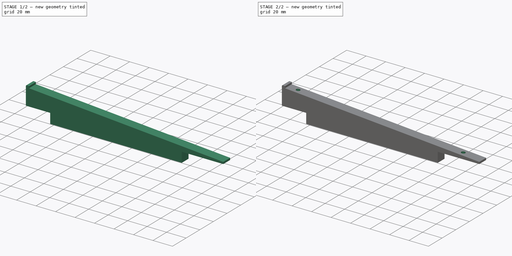
[diagram: build sequence overview — one tinted view per stage of 2, left to right]
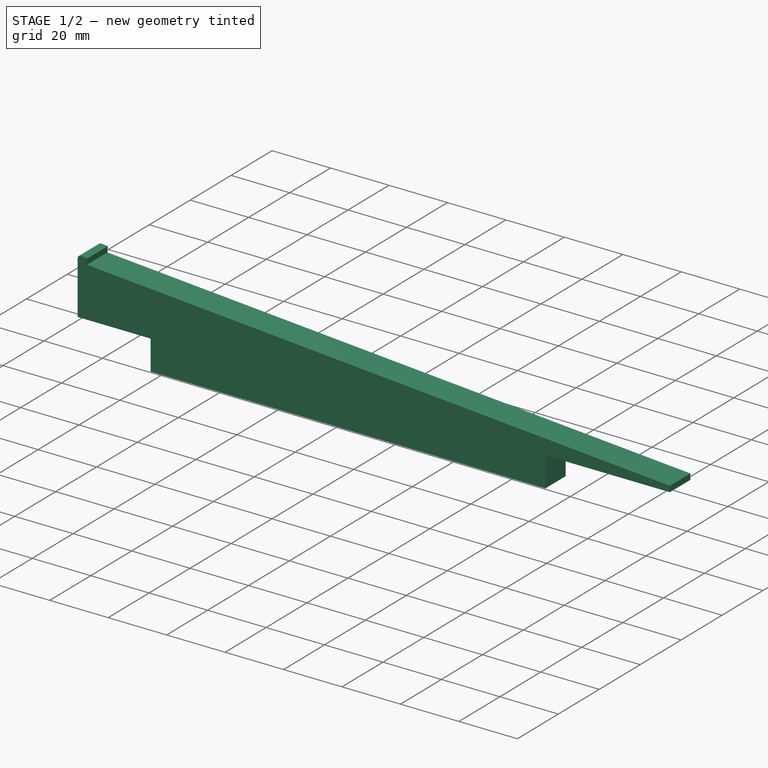
[diagram: stage 1 of 2 — iso view after this stage's code; geometry added in this stage tinted green]
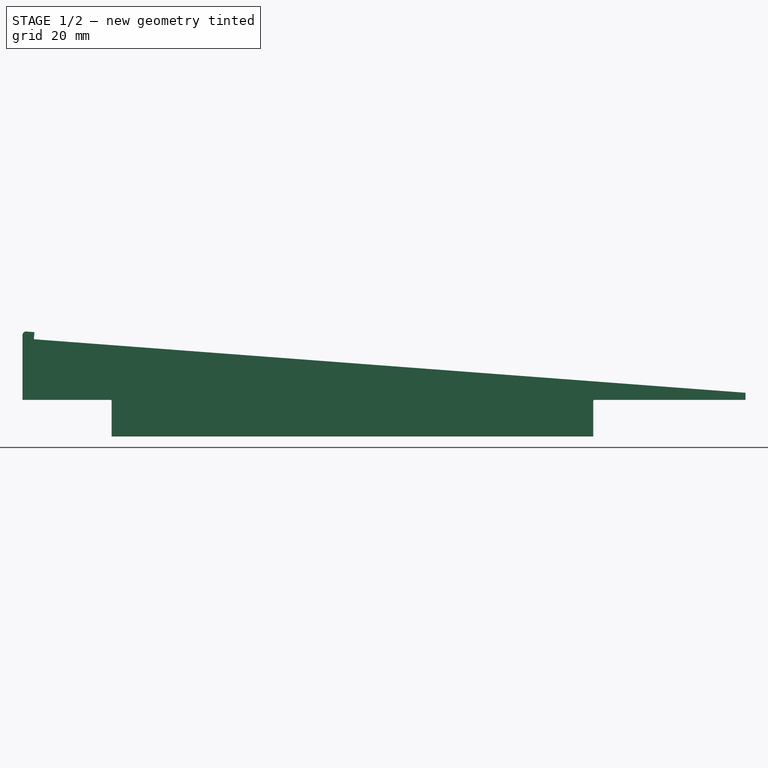
[diagram: stage 1 of 2 — front view after this stage's code; geometry added in this stage tinted green]
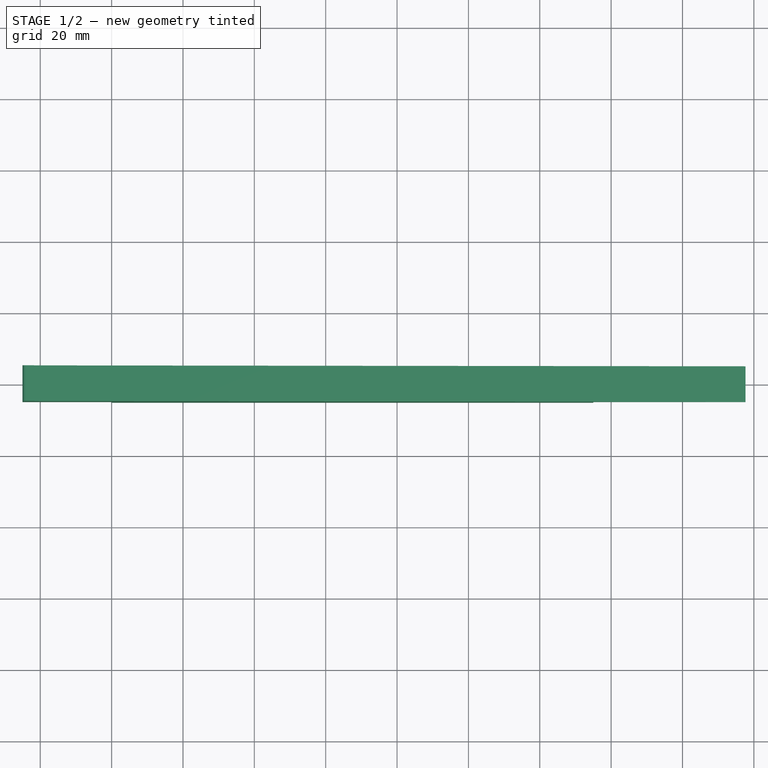
[diagram: stage 1 of 2 — top view after this stage's code; geometry added in this stage tinted green]
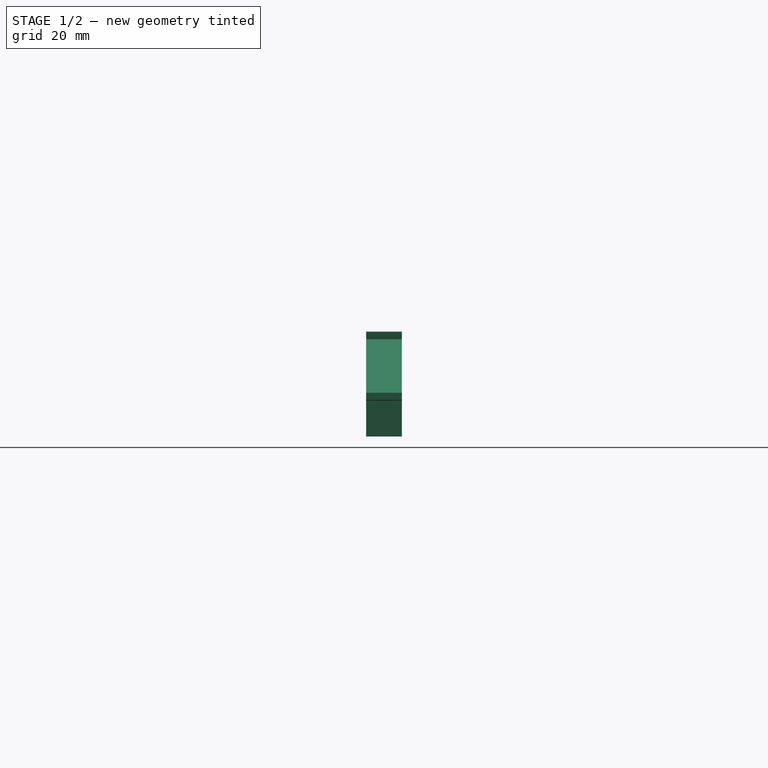
[diagram: stage 1 of 2 — right view after this stage's code; geometry added in this stage tinted green]
FCSTD DOCUMENT  (FreeCAD 0.19RUnknown)
Label: beam_brain_foot
License: All rights reserved
LicenseURL: http://en.wikipedia.org/wiki/All_rights_reserved
objects: Sketcher::SketchObject×2, PartDesign::Pad×1, PartDesign::Fillet×1, PartDesign::Pocket×1, PartDesign::Body×1
note: 9 computed .brp shape members not serialized (recipe doc carries the construction recipe); baked Part::Feature solids carry a one-line shape summary decoded from their .brp

FEATURE [Sketcher::SketchObject] Sketch
  MapMode = 5
  Placement = pos=(0,0,0) rot=(1,0,0;1.5708rad)
  Support = -> [XZ_Plane]
  sketch-geometry (13):
    g0: LineSegment StartX=-24.97 StartY=0 StartZ=0 EndX=-0.25 EndY=0 EndZ=0
    g1: LineSegment StartX=0 StartY=-0.25 StartZ=0 EndX=0 EndY=-10.25 EndZ=0
    g2: LineSegment StartX=0 StartY=-10.25 StartZ=0 EndX=135 EndY=-10.25 EndZ=0
    g3: LineSegment StartX=135 StartY=-10.25 StartZ=0 EndX=135 EndY=-0.250004 EndZ=0
    g4: LineSegment StartX=135.25 StartY=0 StartZ=0 EndX=177.65 EndY=0 EndZ=0
    g5: LineSegment StartX=177.65 StartY=0 StartZ=0 EndX=177.65 EndY=2 EndZ=0
    g6: LineSegment StartX=177.65 StartY=2 StartZ=0 EndX=-21.7867 EndY=17 EndZ=0
    g7: LineSegment StartX=-21.7867 StartY=17 StartZ=0 EndX=-21.6367 EndY=18.9944 EndZ=0
    g8: LineSegment StartX=-21.6367 StartY=18.9944 StartZ=0 EndX=-24.97 EndY=19.2451 EndZ=0
    g9: LineSegment StartX=-24.97 StartY=19.2451 StartZ=0 EndX=-24.97 EndY=0 EndZ=0
    g10: ArcOfCircle CenterX=-0.25 CenterY=-0.25 CenterZ=0 NormalX=0 NormalY=0 NormalZ=1 AngleXU=0 Radius=0.25 StartAngle=7.08003e-09 EndAngle=1.5708
    g11: ArcOfCircle CenterX=135.25 CenterY=-0.25 CenterZ=0 NormalX=0 NormalY=0 NormalZ=1 AngleXU=0 Radius=0.25 StartAngle=1.5708 EndAngle=3.14161
    g12: LineSegment [constr] StartX=-21.7867 StartY=17 StartZ=0 EndX=-21.7867 EndY=0 EndZ=0
  constraints (41):
    c: Vertical(g1)
    c: Coincident(g1,g2)
    c: Horizontal(g2)
    c: Coincident(g2,g3)
    c: Vertical(g3)
    c: Horizontal(g4)
    c: Coincident(g4,g5)
    c: Vertical(g5)
    c: Coincident(g5,g6)
    c: Coincident(g6,g7)
    c: Coincident(g7,g8)
    c: Vertical(g9)
    c: PointOnObject(g0,g-1)
    c: PointOnObject(g0,g-1)
    c: Coincident(g0,g9)
    c: Coincident(g10,g0)
    c: Coincident(g10,g1)
    c: Coincident(g3,g11)
    c: Coincident(g4,g11)
    c: PointOnObject(g4,g-1)
    c: Radius(g11) = 0.25
    c: Radius(g10) = 0.25
    c: DistanceX(g2,g2) = 135
    c: DistanceX(g4,g4) = 42.4
    c: Angle(g7,g8) = 4.71239
    c: Parallel(g8,g6)
    c: Distance(g7) = 2
    c: DistanceX(g0,g0) = 24.72
    c: Distance(g6) = 200
    c: Coincident(g8,g9)
    c: PointOnObject(g1,g-2)
    c: DistanceY(g5,g5) = 2
    c: DistanceY(g3,g3) = 10
    c: Vertical(g12)
    c: PointOnObject(g12,g0)
    c: Coincident(g12,g6)
    c: DistanceY(g12,g12) = 17
    c: Tangent(g10,g1)
    c: Tangent(g10,g0)
    c: Tangent(g11,g4)
    c: Tangent(g11,g3)
FEATURE [PartDesign::Pad] Pad
  Direction = (1,1,1)
  Length = 5
  Length2 = 5
  Placement = pos=(0,0,0) rot=(1,0,0;1.5708rad)
  Profile = -> Sketch
  Type = 4
FEATURE [PartDesign::Fillet] Fillet
  Base = -> Pad [Edge14]
  BaseFeature = -> Pad
  Placement = pos=(0,0,0) rot=(1,0,0;1.5708rad)
  Radius = 1
  SupportTransform = false
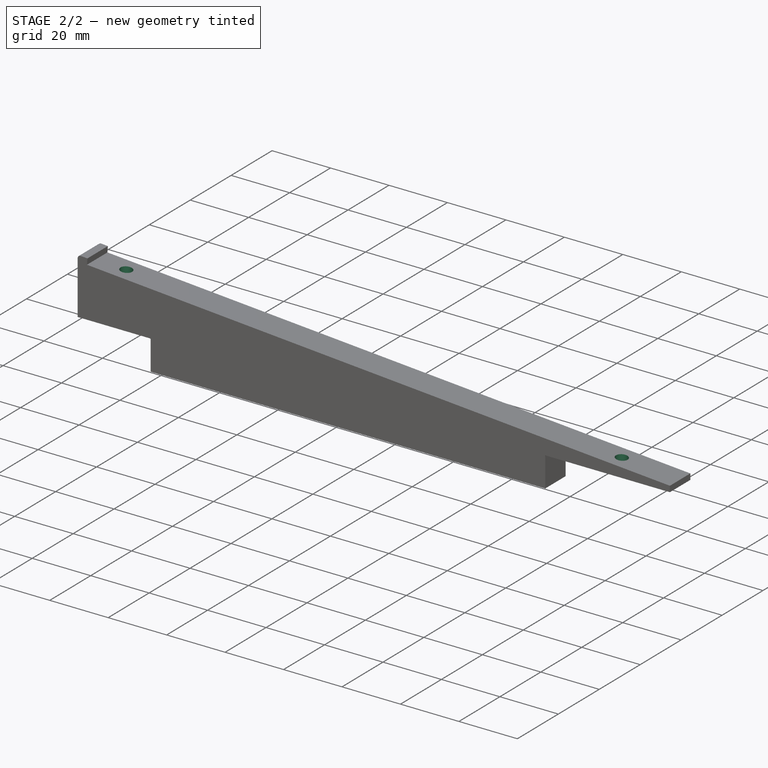
[diagram: stage 2 of 2 — iso view after this stage's code; geometry added in this stage tinted green]
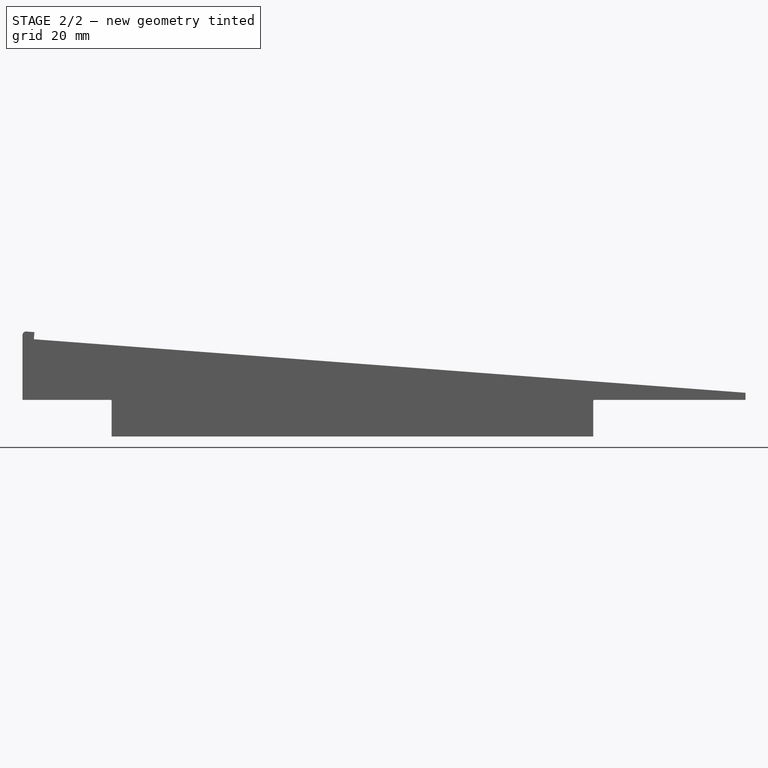
[diagram: stage 2 of 2 — front view after this stage's code; geometry added in this stage tinted green]
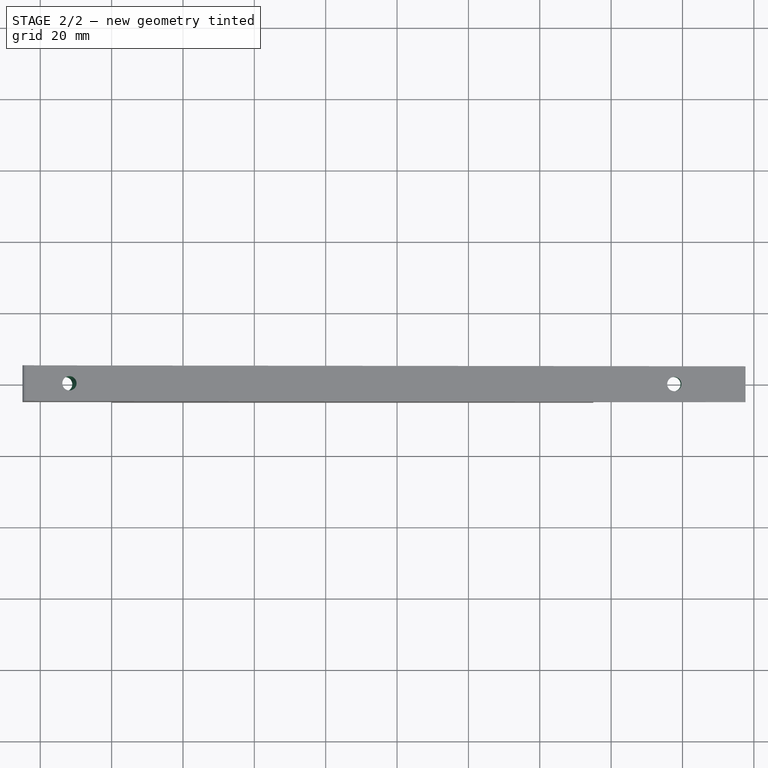
[diagram: stage 2 of 2 — top view after this stage's code; geometry added in this stage tinted green]
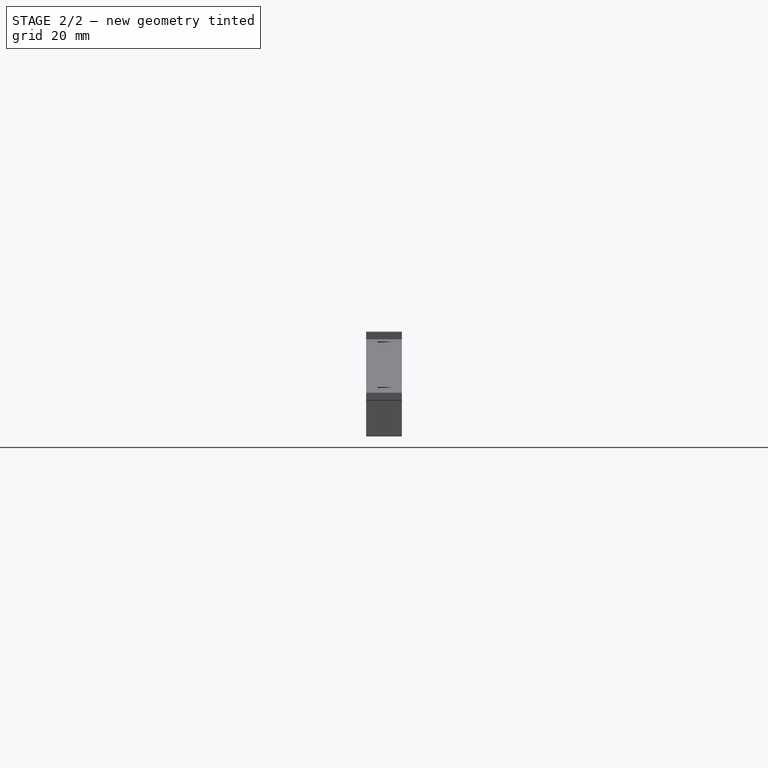
[diagram: stage 2 of 2 — right view after this stage's code; geometry added in this stage tinted green]
FEATURE [Sketcher::SketchObject] Sketch001
  ExternalGeometry = -> [Fillet]
  MapMode = 5
  Placement = pos=(1.14886,-3.4e-15,15.275) rot=(0.037526,0,0.999296;3.14159rad)
  Support = -> [Fillet]
  sketch-geometry (4):
    g0: Circle CenterX=13.0003 CenterY=0 CenterZ=0 NormalX=0 NormalY=0 NormalZ=1 AngleXU=0 Radius=2
    g1: LineSegment [constr] StartX=23.0003 StartY=0 StartZ=0 EndX=13.0003 EndY=0 EndZ=0
    g2: LineSegment [constr] StartX=-177 StartY=0 StartZ=0 EndX=-157 EndY=0 EndZ=0
    g3: Circle CenterX=-157 CenterY=0 CenterZ=0 NormalX=0 NormalY=0 NormalZ=1 AngleXU=0 Radius=2
  constraints (12):
    c: PointOnObject(g1,g-3)
    c: PointOnObject(g1,g-1)
    c: Horizontal(g1)
    c: DistanceX(g1,g1) = 10
    c: Coincident(g0,g1)
    c: Diameter(g0) = 4
    c: Horizontal(g2)
    c: PointOnObject(g2,g-4)
    c: PointOnObject(g2,g-1)
    c: DistanceX(g2,g2) = 20
    c: Coincident(g3,g2)
    c: Diameter(g3) = 4
FEATURE [PartDesign::Pocket] Pocket
  BaseFeature = -> Fillet
  Length = 5
  Length2 = 100
  Placement = pos=(0,0,0) rot=(1,0,0;1.5708rad)
  Profile = -> Sketch001
  Type = 1
FEATURE [PartDesign::Body] Body
  Group = -> [Sketch,Pad,Fillet,Sketch001,Pocket]
  Origin = -> Origin
  Tip = -> Pocket
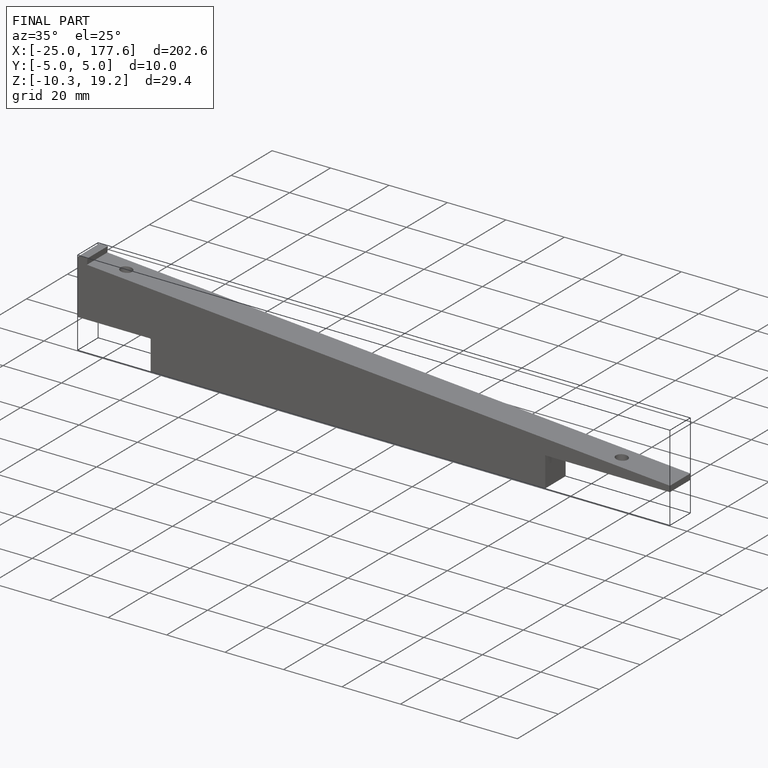
[diagram: finished part — iso view with bounding-box wireframe]
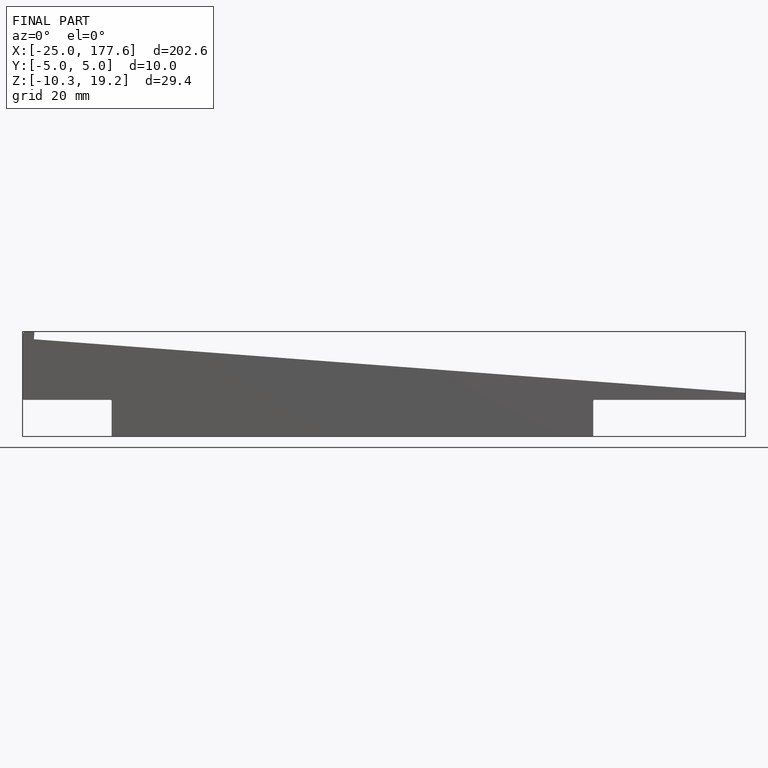
[diagram: finished part — front view with bounding-box wireframe]
